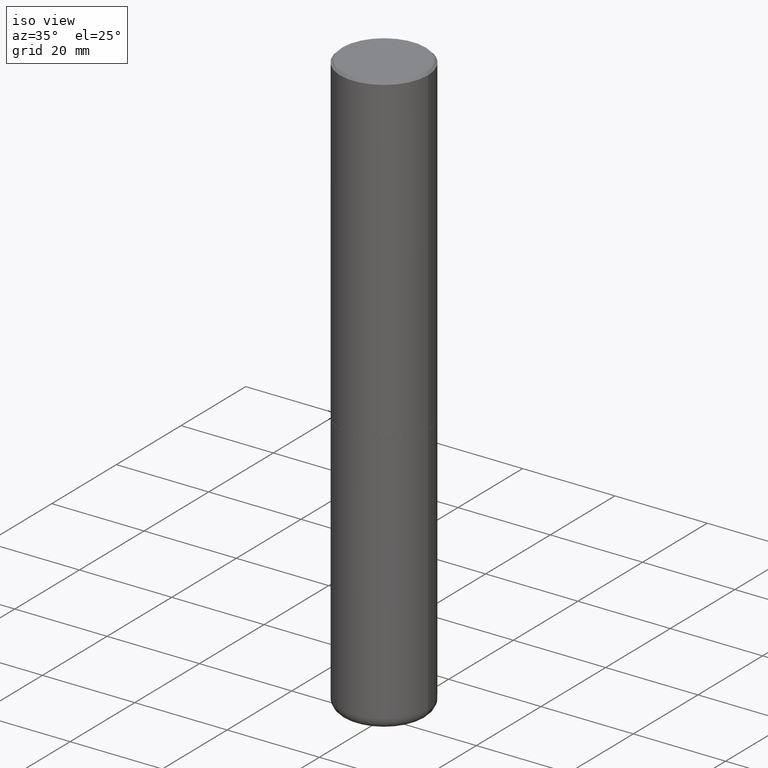
[diagram: clean part render]
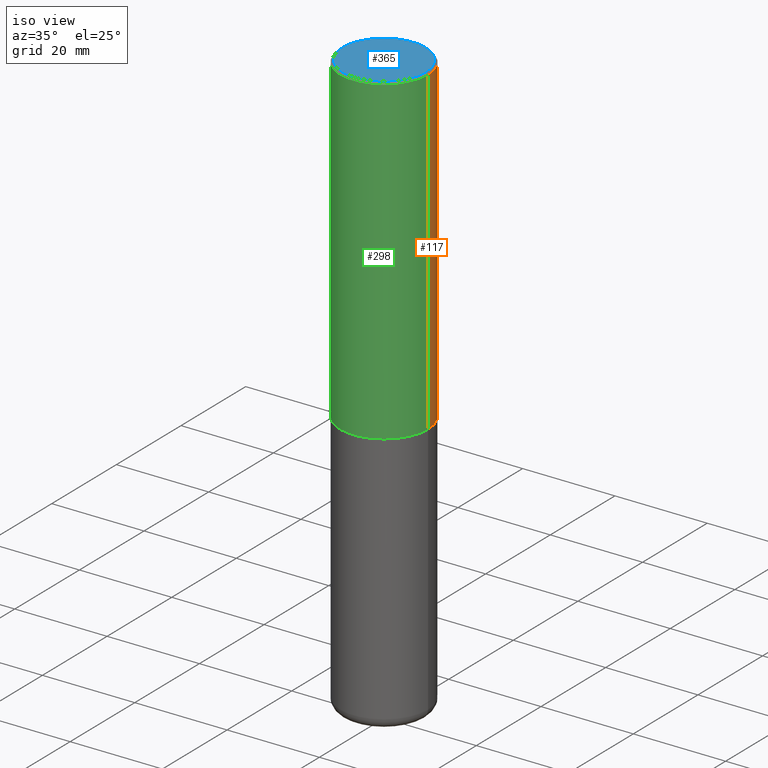
[diagram: same view with three faces highlighted in distinct colors, each labeled with its STEP entity id]
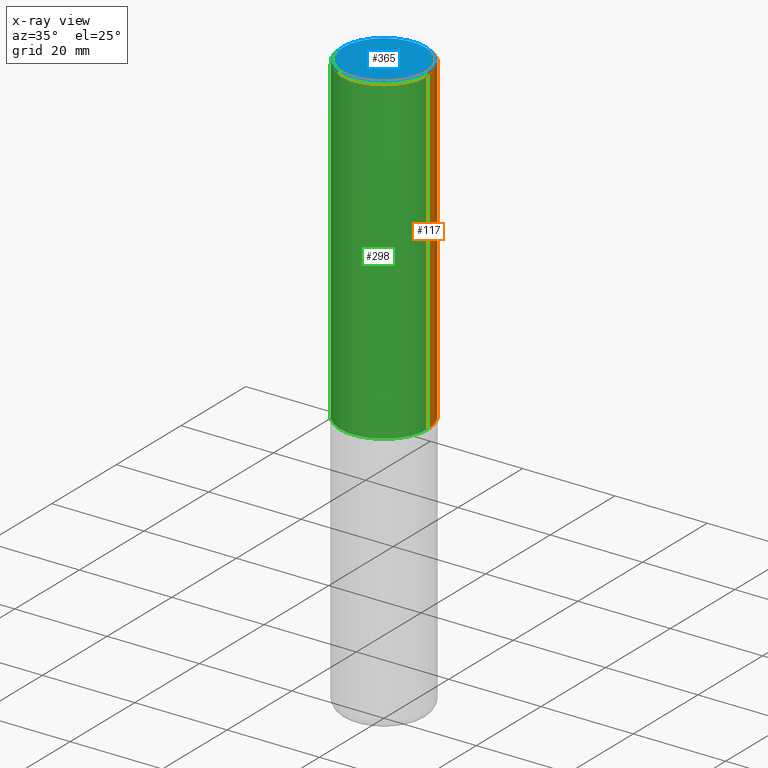
[diagram: x-ray of the same camera — body ghosted, the three highlighted faces saturated]
A machine part, iso view with three faces highlighted in distinct colors.
The next image is the same camera in x-ray (body ghosted, the three faces saturated) — at least one of them is partly hidden behind the body in this view.
Their STEP definitions:

[orange] entity #117 — the highlighted cylindrical surface (partial cylindrical patch) has radius 9.525 mm, axis along (-0, 0, 1).
#3 = CARTESIAN_POINT ( 'NONE',  ( 0.3750000000000000555, -1.221669320461216002E-14, -2.749000000000000554 ) ) ;
#8 = CARTESIAN_POINT ( 'NONE',  ( 0.3749999999999995559, -2.618611004132346467E-15, 1.828566290923473680E-29 ) ) ;
#11 = CARTESIAN_POINT ( 'NONE',  ( 0.000000000000000000, 0.000000000000000000, 0.000000000000000000 ) ) ;
#22 = CIRCLE ( 'NONE', #50, 0.3749999999999991673 ) ;
#47 = DIRECTION ( 'NONE',  ( -2.445468806185136597E-29, 3.491481338843145583E-15, 1.000000000000000000 ) ) ;
#49 = DIRECTION ( 'NONE',  ( 1.000000000000000000, -6.982962677686266711E-15, 0.000000000000000000 ) ) ;
#50 = AXIS2_PLACEMENT_3D ( 'NONE', #203, #47, #49 ) ;
#80 = LINE ( 'NONE', #464, #491 ) ;
#87 = CARTESIAN_POINT ( 'NONE',  ( -0.3750000000000000555, -2.169420654527954251E-15, -2.749000000000000554 ) ) ;
#95 = ORIENTED_EDGE ( 'NONE', *, *, #131, .F. ) ;
#117 = ADVANCED_FACE ( 'NONE', ( #247 ), #281, .T. ) ;
#121 = DIRECTION ( 'NONE',  ( 1.000000000000000000, -6.982962677686266711E-15, 0.000000000000000000 ) ) ;
#131 = EDGE_CURVE ( 'NONE', #253, #386, #463, .T. ) ;
#134 = VERTEX_POINT ( 'NONE', #87 ) ;
#143 = CIRCLE ( 'NONE', #197, 0.3750000000000000555 ) ;
#153 = VECTOR ( 'NONE', #359, 39.37007874015748143 ) ;
#169 = DIRECTION ( 'NONE',  ( -2.445468806185136597E-29, 3.491481338843145583E-15, 1.000000000000000000 ) ) ;
#174 = DIRECTION ( 'NONE',  ( -2.445468806185136597E-29, 3.491481338843145583E-15, 1.000000000000000000 ) ) ;
#179 = EDGE_CURVE ( 'NONE', #386, #180, #22, .T. ) ;
#180 = VERTEX_POINT ( 'NONE', #206 ) ;
#181 = CARTESIAN_POINT ( 'NONE',  ( 0.3749999999999991673, -2.642516375941182112E-15, -0.02000000000000020858 ) ) ;
#197 = AXIS2_PLACEMENT_3D ( 'NONE', #403, #174, #121 ) ;
#203 = CARTESIAN_POINT ( 'NONE',  ( 4.890937612370324831E-31, -6.982962677686364332E-17, -0.02000000000000020858 ) ) ;
#206 = CARTESIAN_POINT ( 'NONE',  ( -0.3749999999999991673, 2.548781377355480407E-15, -0.02000000000000020858 ) ) ;
#241 = DIRECTION ( 'NONE',  ( -2.445468806185136877E-29, 3.491481338843145188E-15, 1.000000000000000000 ) ) ;
#247 = FACE_OUTER_BOUND ( 'NONE', #471, .T. ) ;
#253 = VERTEX_POINT ( 'NONE', #3 ) ;
#281 = CYLINDRICAL_SURFACE ( 'NONE', #454, 0.3749999999999995559 ) ;
#286 = DIRECTION ( 'NONE',  ( 1.000000000000000000, -6.982962677686265133E-15, 4.876176775795935793E-29 ) ) ;
#346 = ORIENTED_EDGE ( 'NONE', *, *, #420, .T. ) ;
#348 = EDGE_CURVE ( 'NONE', #134, #180, #80, .T. ) ;
#359 = DIRECTION ( 'NONE',  ( -2.445468806185136877E-29, 3.491481338843145188E-15, 1.000000000000000000 ) ) ;
#362 = ORIENTED_EDGE ( 'NONE', *, *, #348, .T. ) ;
#386 = VERTEX_POINT ( 'NONE', #181 ) ;
#403 = CARTESIAN_POINT ( 'NONE',  ( 6.722593748202942280E-29, -9.598082200479810007E-15, -2.749000000000000554 ) ) ;
#420 = EDGE_CURVE ( 'NONE', #253, #134, #143, .T. ) ;
#454 = AXIS2_PLACEMENT_3D ( 'NONE', #11, #169, #286 ) ;
#463 = LINE ( 'NONE', #8, #153 ) ;
#464 = CARTESIAN_POINT ( 'NONE',  ( -0.3749999999999995559, 2.664535259100372542E-15, -1.844600658845587356E-29 ) ) ;
#471 = EDGE_LOOP ( 'NONE', ( #346, #362, #488, #95 ) ) ;
#488 = ORIENTED_EDGE ( 'NONE', *, *, #179, .F. ) ;
#491 = VECTOR ( 'NONE', #241, 39.37007874015748143 ) ;

[blue] entity #365 — the highlighted planar face has unit normal (0, -0, -1).
#15 = VERTEX_POINT ( 'NONE', #27 ) ;
#16 = DIRECTION ( 'NONE',  ( 1.000000000000000000, -6.982962677686265133E-15, 4.876231632512000515E-29 ) ) ;
#21 = CARTESIAN_POINT ( 'NONE',  ( -1.043851414335219820E-46, 1.490343170380447200E-32, 4.268512490100411279E-18 ) ) ;
#27 = CARTESIAN_POINT ( 'NONE',  ( -0.3549999999999990941, 2.513866563967049153E-15, 4.268512490082953109E-18 ) ) ;
#46 = EDGE_LOOP ( 'NONE', ( #173, #249 ) ) ;
#100 = DIRECTION ( 'NONE',  ( 2.438088387897960049E-29, -3.491481338843145188E-15, -1.000000000000000000 ) ) ;
#138 = FACE_OUTER_BOUND ( 'NONE', #46, .T. ) ;
#142 = AXIS2_PLACEMENT_3D ( 'NONE', #176, #100, #367 ) ;
#173 = ORIENTED_EDGE ( 'NONE', *, *, #319, .T. ) ;
#176 = CARTESIAN_POINT ( 'NONE',  ( 2.478951750578617898E-15, 0.3549999999999990941, -1.237341619044263272E-15 ) ) ;
#189 = CIRCLE ( 'NONE', #396, 0.3549999999999990941 ) ;
#236 = CARTESIAN_POINT ( 'NONE',  ( 0.3549999999999990941, -2.538996582575035132E-15, 4.268512490117958041E-18 ) ) ;
#249 = ORIENTED_EDGE ( 'NONE', *, *, #381, .T. ) ;
#255 = PLANE ( 'NONE',  #142 ) ;
#285 = CARTESIAN_POINT ( 'NONE',  ( -1.043851414335219820E-46, 1.490343170380447200E-32, 4.268512490100411279E-18 ) ) ;
#290 = DIRECTION ( 'NONE',  ( -2.445468806185136597E-29, 3.491481338843145583E-15, 1.000000000000000000 ) ) ;
#293 = VERTEX_POINT ( 'NONE', #236 ) ;
#314 = DIRECTION ( 'NONE',  ( 1.000000000000000000, -6.982962677686265133E-15, 4.876231632512000515E-29 ) ) ;
#319 = EDGE_CURVE ( 'NONE', #15, #293, #345, .T. ) ;
#345 = CIRCLE ( 'NONE', #436, 0.3549999999999990941 ) ;
#365 = ADVANCED_FACE ( 'NONE', ( #138 ), #255, .F. ) ;
#367 = DIRECTION ( 'NONE',  ( -1.000000000000000000, 6.982962677686265922E-15, -4.876176775795935793E-29 ) ) ;
#381 = EDGE_CURVE ( 'NONE', #293, #15, #189, .T. ) ;
#396 = AXIS2_PLACEMENT_3D ( 'NONE', #21, #480, #16 ) ;
#436 = AXIS2_PLACEMENT_3D ( 'NONE', #285, #290, #314 ) ;
#480 = DIRECTION ( 'NONE',  ( -2.445468806185136597E-29, 3.491481338843145583E-15, 1.000000000000000000 ) ) ;

[green] entity #298 — the highlighted cylindrical surface (partial cylindrical patch) has radius 9.525 mm, axis along (-0, 0, 1).
#3 = CARTESIAN_POINT ( 'NONE',  ( 0.3750000000000000555, -1.221669320461216002E-14, -2.749000000000000554 ) ) ;
#8 = CARTESIAN_POINT ( 'NONE',  ( 0.3749999999999995559, -2.618611004132346467E-15, 1.828566290923473680E-29 ) ) ;
#12 = CARTESIAN_POINT ( 'NONE',  ( 0.000000000000000000, 0.000000000000000000, 0.000000000000000000 ) ) ;
#29 = CIRCLE ( 'NONE', #369, 0.3749999999999991673 ) ;
#30 = ORIENTED_EDGE ( 'NONE', *, *, #348, .F. ) ;
#36 = EDGE_CURVE ( 'NONE', #134, #253, #128, .T. ) ;
#54 = DIRECTION ( 'NONE',  ( 1.000000000000000000, -6.982962677686266711E-15, 0.000000000000000000 ) ) ;
#55 = ORIENTED_EDGE ( 'NONE', *, *, #36, .T. ) ;
#58 = ORIENTED_EDGE ( 'NONE', *, *, #131, .T. ) ;
#78 = DIRECTION ( 'NONE',  ( -2.445468806185136597E-29, 3.491481338843145583E-15, 1.000000000000000000 ) ) ;
#80 = LINE ( 'NONE', #464, #491 ) ;
#87 = CARTESIAN_POINT ( 'NONE',  ( -0.3750000000000000555, -2.169420654527954251E-15, -2.749000000000000554 ) ) ;
#104 = AXIS2_PLACEMENT_3D ( 'NONE', #159, #277, #483 ) ;
#116 = FACE_OUTER_BOUND ( 'NONE', #259, .T. ) ;
#128 = CIRCLE ( 'NONE', #104, 0.3750000000000000555 ) ;
#131 = EDGE_CURVE ( 'NONE', #253, #386, #463, .T. ) ;
#134 = VERTEX_POINT ( 'NONE', #87 ) ;
#153 = VECTOR ( 'NONE', #359, 39.37007874015748143 ) ;
#159 = CARTESIAN_POINT ( 'NONE',  ( 6.722593748202942280E-29, -9.598082200479810007E-15, -2.749000000000000554 ) ) ;
#167 = DIRECTION ( 'NONE',  ( -2.445468806185136597E-29, 3.491481338843145583E-15, 1.000000000000000000 ) ) ;
#180 = VERTEX_POINT ( 'NONE', #206 ) ;
#181 = CARTESIAN_POINT ( 'NONE',  ( 0.3749999999999991673, -2.642516375941182112E-15, -0.02000000000000020858 ) ) ;
#206 = CARTESIAN_POINT ( 'NONE',  ( -0.3749999999999991673, 2.548781377355480407E-15, -0.02000000000000020858 ) ) ;
#207 = CARTESIAN_POINT ( 'NONE',  ( 4.890937612370324831E-31, -6.982962677686364332E-17, -0.02000000000000020858 ) ) ;
#223 = EDGE_CURVE ( 'NONE', #180, #386, #29, .T. ) ;
#241 = DIRECTION ( 'NONE',  ( -2.445468806185136877E-29, 3.491481338843145188E-15, 1.000000000000000000 ) ) ;
#253 = VERTEX_POINT ( 'NONE', #3 ) ;
#259 = EDGE_LOOP ( 'NONE', ( #30, #55, #58, #393 ) ) ;
#277 = DIRECTION ( 'NONE',  ( -2.445468806185136597E-29, 3.491481338843145583E-15, 1.000000000000000000 ) ) ;
#298 = ADVANCED_FACE ( 'NONE', ( #116 ), #358, .T. ) ;
#316 = AXIS2_PLACEMENT_3D ( 'NONE', #12, #167, #321 ) ;
#321 = DIRECTION ( 'NONE',  ( 1.000000000000000000, -6.982962677686265133E-15, 4.876176775795935793E-29 ) ) ;
#348 = EDGE_CURVE ( 'NONE', #134, #180, #80, .T. ) ;
#358 = CYLINDRICAL_SURFACE ( 'NONE', #316, 0.3749999999999995559 ) ;
#359 = DIRECTION ( 'NONE',  ( -2.445468806185136877E-29, 3.491481338843145188E-15, 1.000000000000000000 ) ) ;
#369 = AXIS2_PLACEMENT_3D ( 'NONE', #207, #78, #54 ) ;
#386 = VERTEX_POINT ( 'NONE', #181 ) ;
#393 = ORIENTED_EDGE ( 'NONE', *, *, #223, .F. ) ;
#463 = LINE ( 'NONE', #8, #153 ) ;
#464 = CARTESIAN_POINT ( 'NONE',  ( -0.3749999999999995559, 2.664535259100372542E-15, -1.844600658845587356E-29 ) ) ;
#483 = DIRECTION ( 'NONE',  ( 1.000000000000000000, -6.982962677686266711E-15, 0.000000000000000000 ) ) ;
#491 = VECTOR ( 'NONE', #241, 39.37007874015748143 ) ;